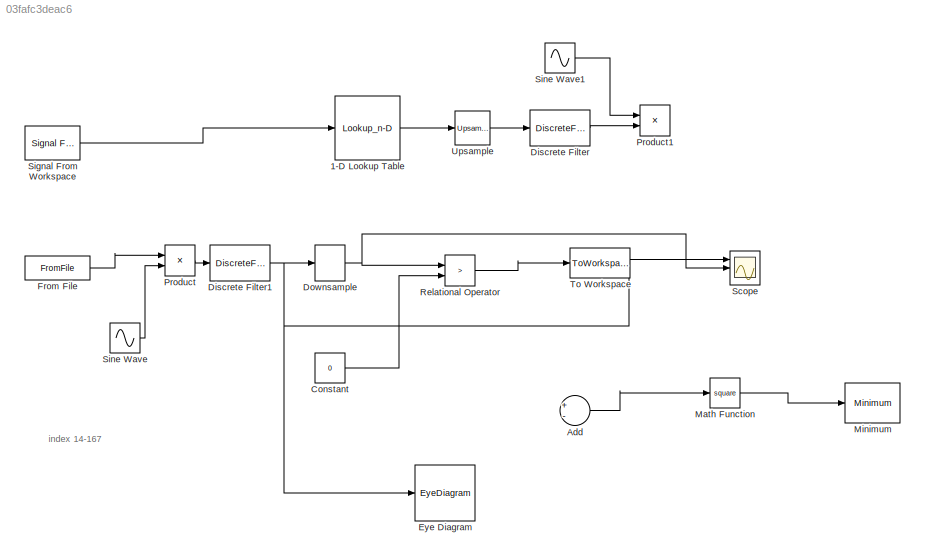
MODEL slx_03fafc3deac6
KIND model
CONFIG AbsTol = auto
CONFIG FixedStep = auto
CONFIG MaxStep = auto
CONFIG MinStep = auto
CONFIG RelTol = 1e-3
CONFIG SampleTimeConstraint = Unconstrained
CONFIG Solver = FixedStepDiscrete
CONFIG SolverMode = SingleTasking
CONFIG SolverName = FixedStepDiscrete
CONFIG StartTime = 0.0
CONFIG StopTime = (12+154)*8
BLOCK [Lookup_n-D] 1-D Lookup Table
  BreakpointsForDimension1 = [0:1]
  Commented = on
  InternalRulePriority = Speed
  NumberOfTableDimensions = 1
  Ports = [1, 1]
  RndMeth = Simplest
  Table = [-1 1]
BLOCK [Sum] Add
  Commented = on
  InputSameDT = off
  Inputs = +-
  OutDataTypeStr = Inherit: Inherit via internal rule
  Ports = [2, 1]
  SaturateOnIntegerOverflow = off
BLOCK [Constant] Constant
  Value = 0
BLOCK [DiscreteFilter] Discrete Filter
  Commented = on
  Denominator = [1]
  InputPortMap = u0
  Numerator = rcosine(1,8,'fir/sqrt',0.5,6)
  Ports = [1, 1]
BLOCK [DiscreteFilter] Discrete Filter1
  Denominator = [1]
  InputPortMap = u0
  Numerator = rcosine(1,8,'fir/sqrt',0.5,6)
  Ports = [1, 1]
BLOCK [DownSample] Downsample
  InputProcessing = Inherited (this choice will be removed - see release notes)
  N = 8
  RateOptions = Allow multirate processing
  phase = 1
BLOCK [EyeDiagram] Eye Diagram
  Ports = [1]
  ScopeSpecificationString = comm.scopes.EyeDiagramBlockCfg('CurrentConfiguration', extmgr.ConfigurationSet(extmgr.Configuration('Core','General UI',true),extmgr.Configuration('Core','Source UI',true),extmgr.Configuration('Sources','WiredSimulink',true),extmgr.Configuration('Sources','Simulink',false),extmgr.Configuration('Sources','File',false),extmgr.Configuration('Sources','Workspace',false),extmgr.Configuration('Sources',...<+1067ch>
BLOCK [FromFile] From File
  FileName = bpskdata.mat
  OutDataTypeStr = double
  SampleTime = 1
BLOCK [Math] Math Function
  Commented = on
  Operator = square
  Ports = [1, 1]
BLOCK [Reference] Minimum  REF=dspstat3/Minimum
  Commented = on
  Ports = [1, 1]
  SourceBlock = dspstat3/Minimum
  SourceType = Minimum
  UserDataPersistent = on
BLOCK [Product] Product
  InputSameDT = off
  OutDataTypeStr = Inherit: Inherit via internal rule
  Ports = [2, 1]
  RndMeth = Floor
  SaturateOnIntegerOverflow = off
BLOCK [Product] Product1
  Commented = on
  InputSameDT = off
  OutDataTypeStr = Inherit: Inherit via internal rule
  Ports = [2, 1]
  RndMeth = Floor
  SaturateOnIntegerOverflow = off
BLOCK [RelationalOperator] Relational Operator
  InputSameDT = off
  Operator = >
  OutDataTypeStr = boolean
  Ports = [2, 1]
BLOCK [Scope] Scope
  NumInputPorts = 3
  Ports = [3]
  ScopeSpecificationString = Simulink.scopes.TimeScopeBlockCfg('CurrentConfiguration', extmgr.ConfigurationSet(extmgr.Configuration('Core','General UI',true),extmgr.Configuration('Core','Source UI',true),extmgr.Configuration('Sources','WiredSimulink',true),extmgr.Configuration('Visuals','Time Domain',true,'SerializedDisplays',{struct('MinYLimReal','-0.60017','MaxYLimReal','1.16884','YLabelReal','','MinYLimMag','0.00000','MaxY...<+1410ch>
BLOCK [Reference] Signal From Workspace  REF=dspsrcs4/Signal From
Workspace
  Commented = on
  Ports = [0, 1]
  SourceBlock = dspsrcs4/Signal From\nWorkspace
  SourceType = Signal From Workspace
BLOCK [Sin] Sine Wave
  Amplitude = sqrt(2)
  Frequency = 2*pi/4
  Phase = pi/2
  Ports = [0, 1]
  SampleTime = 1
BLOCK [Sin] Sine Wave1
  Amplitude = sqrt(2)
  Commented = on
  Frequency = 2*pi/4
  Phase = pi/2
  Ports = [0, 1]
  SampleTime = 1
BLOCK [ToWorkspace] To Workspace
  FixptAsFi = on
  MaxDataPoints = inf
  Ports = [1]
  SampleTime = -1
  Save2DSignal = 2-D array (concatenate along first dimension)
  VariableName = lookuphere
BLOCK [Reference] Upsample  REF=dspsigops/Upsample
  Commented = on
  Ports = [1, 1]
  SourceBlock = dspsigops/Upsample
  SourceType = Upsample
  UserDataPersistent = on
ANNOTATION (root): index 14-167
LINE 1-D Lookup Table:1 -> Upsample:1
LINE Add:1 -> Math Function:1
LINE Constant:1 -> Relational Operator:2
NET Discrete Filter1:1 -> Downsample:1, Eye Diagram:1, Scope:1
LINE Discrete Filter:1 -> Product1:2
NET Downsample:1 -> Relational Operator:1, Scope:2
LINE From File:1 -> Product:1
LINE Math Function:1 -> Minimum:1
LINE Product:1 -> Discrete Filter1:1
LINE Relational Operator:1 -> To Workspace:1
LINE Signal From Workspace:1 -> 1-D Lookup Table:1
LINE Sine Wave1:1 -> Product1:1
LINE Sine Wave:1 -> Product:2
LINE Upsample:1 -> Discrete Filter:1
note: NET lines group one-source signal fan-out (src -> all destinations, sorted); 1:1 wires keep LINE
